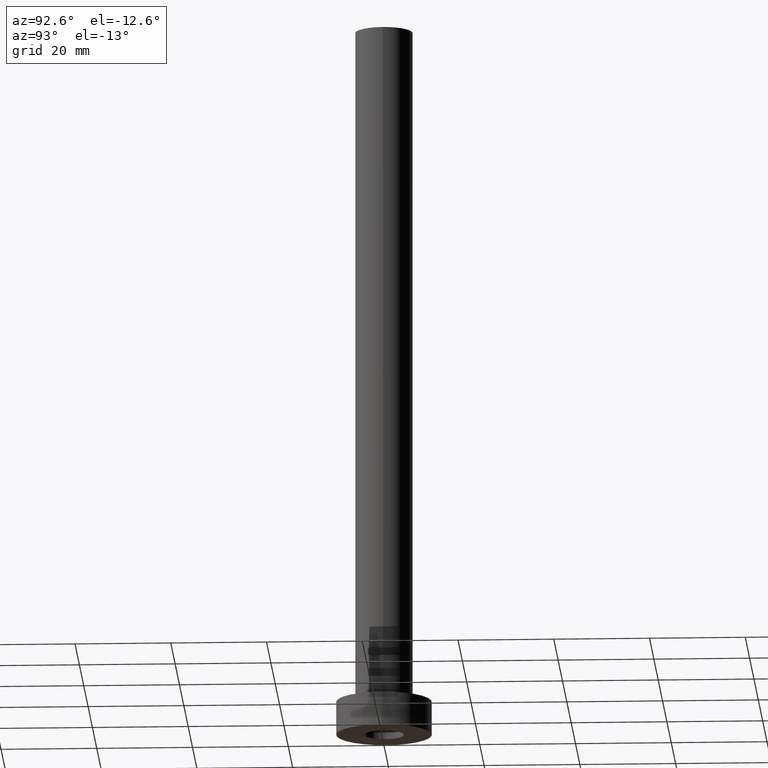
[diagram: clean part render]
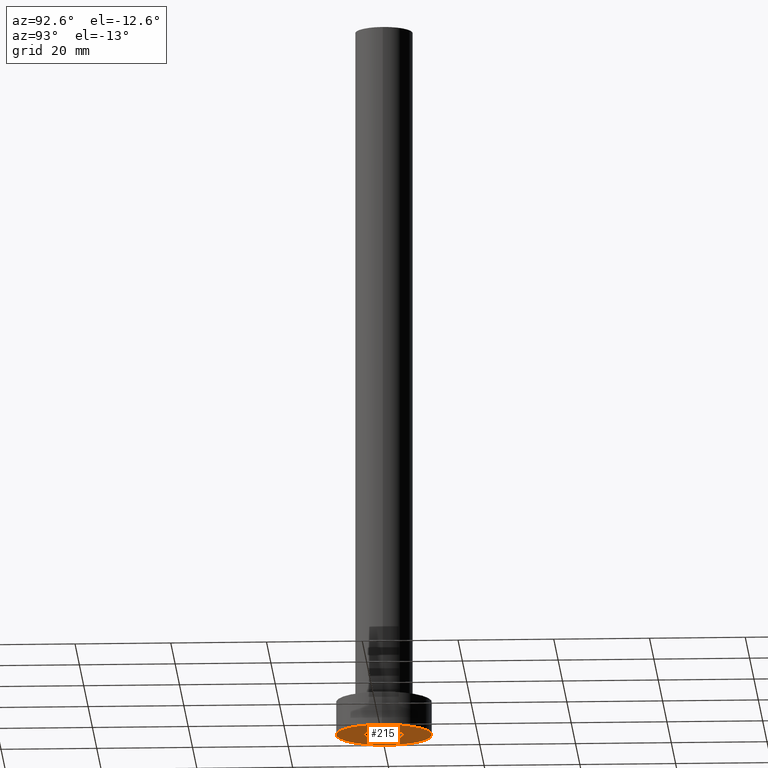
[diagram: same view with one face highlighted and labeled with its STEP entity id]
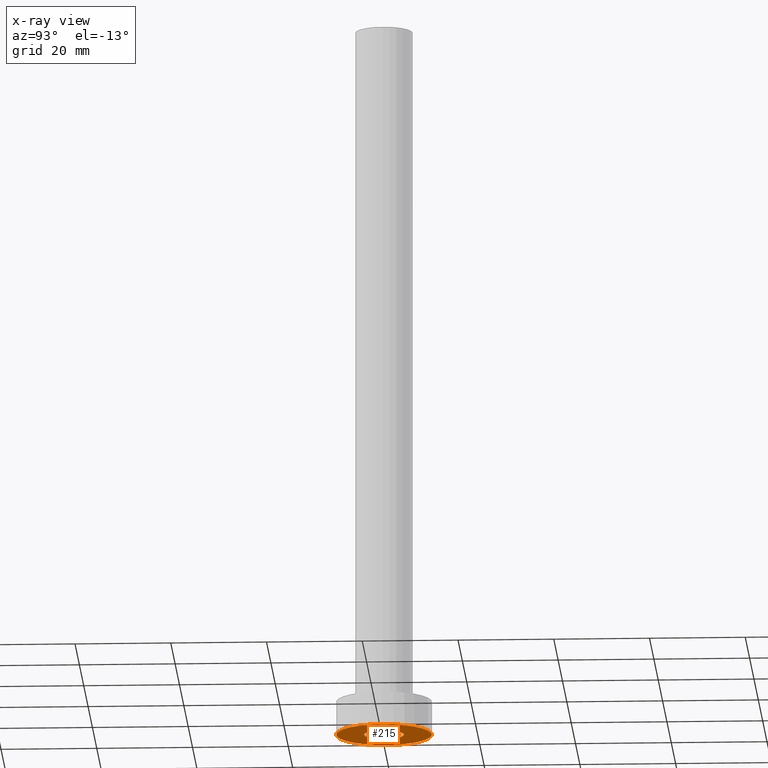
[diagram: x-ray of the same camera — body ghosted, the highlighted face saturated]
A machine part, auxiliary view. The second image highlights one B-rep face of the part: STEP entity #215.
The next image is the same camera in x-ray: the body ghosted, the highlighted face saturated — about 0% of this face is hidden behind the body in this view.
In plain terms, the highlighted planar face has unit normal (0, 0, 1).
Its self-contained STEP definition (entity closure, byte-faithful):
#5 = CARTESIAN_POINT ( 'NONE',  ( -4.150000000000000355, 0.000000000000000000, 0.000000000000000000 ) ) ;
#17 = CARTESIAN_POINT ( 'NONE',  ( 0.000000000000000000, 0.000000000000000000, 0.000000000000000000 ) ) ;
#43 = DIRECTION ( 'NONE',  ( 0.000000000000000000, 0.000000000000000000, 1.000000000000000000 ) ) ;
#118 = CARTESIAN_POINT ( 'NONE',  ( 0.000000000000000000, 0.000000000000000000, 0.000000000000000000 ) ) ;
#121 = DIRECTION ( 'NONE',  ( 1.000000000000000000, 0.000000000000000000, 0.000000000000000000 ) ) ;
#122 = DIRECTION ( 'NONE',  ( 1.000000000000000000, 0.000000000000000000, 0.000000000000000000 ) ) ;
#146 = FACE_BOUND ( 'NONE', #304, .T. ) ;
#152 = CARTESIAN_POINT ( 'NONE',  ( 10.00000000000000000, 1.224646799147353256E-15, 0.000000000000000000 ) ) ;
#155 = DIRECTION ( 'NONE',  ( 1.000000000000000000, 0.000000000000000000, -0.000000000000000000 ) ) ;
#159 = CARTESIAN_POINT ( 'NONE',  ( -10.00000000000000000, 0.000000000000000000, 0.000000000000000000 ) ) ;
#160 = EDGE_CURVE ( 'NONE', #316, #452, #385, .T. ) ;
#171 = AXIS2_PLACEMENT_3D ( 'NONE', #205, #449, #122 ) ;
#177 = ORIENTED_EDGE ( 'NONE', *, *, #207, .F. ) ;
#180 = AXIS2_PLACEMENT_3D ( 'NONE', #17, #374, #155 ) ;
#197 = CARTESIAN_POINT ( 'NONE',  ( 4.150000000000000355, 5.082284216461515156E-16, 0.000000000000000000 ) ) ;
#205 = CARTESIAN_POINT ( 'NONE',  ( 0.000000000000000000, 0.000000000000000000, 0.000000000000000000 ) ) ;
#207 = EDGE_CURVE ( 'NONE', #267, #381, #247, .T. ) ;
#215 = ADVANCED_FACE ( 'NONE', ( #146, #234 ), #410, .F. ) ;
#234 = FACE_OUTER_BOUND ( 'NONE', #329, .T. ) ;
#238 = AXIS2_PLACEMENT_3D ( 'NONE', #357, #43, #313 ) ;
#247 = CIRCLE ( 'NONE', #238, 10.00000000000000000 ) ;
#267 = VERTEX_POINT ( 'NONE', #159 ) ;
#271 = CIRCLE ( 'NONE', #423, 4.150000000000000355 ) ;
#282 = ORIENTED_EDGE ( 'NONE', *, *, #390, .F. ) ;
#284 = ORIENTED_EDGE ( 'NONE', *, *, #160, .F. ) ;
#296 = CARTESIAN_POINT ( 'NONE',  ( 0.000000000000000000, 0.000000000000000000, 0.000000000000000000 ) ) ;
#300 = AXIS2_PLACEMENT_3D ( 'NONE', #296, #447, #121 ) ;
#303 = DIRECTION ( 'NONE',  ( 1.000000000000000000, 0.000000000000000000, 0.000000000000000000 ) ) ;
#304 = EDGE_LOOP ( 'NONE', ( #282, #284 ) ) ;
#313 = DIRECTION ( 'NONE',  ( 1.000000000000000000, 0.000000000000000000, 0.000000000000000000 ) ) ;
#316 = VERTEX_POINT ( 'NONE', #197 ) ;
#329 = EDGE_LOOP ( 'NONE', ( #177, #395 ) ) ;
#357 = CARTESIAN_POINT ( 'NONE',  ( 0.000000000000000000, 0.000000000000000000, 0.000000000000000000 ) ) ;
#374 = DIRECTION ( 'NONE',  ( 0.000000000000000000, 0.000000000000000000, 1.000000000000000000 ) ) ;
#379 = DIRECTION ( 'NONE',  ( -0.000000000000000000, -0.000000000000000000, -1.000000000000000000 ) ) ;
#381 = VERTEX_POINT ( 'NONE', #152 ) ;
#385 = CIRCLE ( 'NONE', #171, 4.150000000000000355 ) ;
#390 = EDGE_CURVE ( 'NONE', #452, #316, #271, .T. ) ;
#392 = CIRCLE ( 'NONE', #300, 10.00000000000000000 ) ;
#395 = ORIENTED_EDGE ( 'NONE', *, *, #426, .F. ) ;
#410 = PLANE ( 'NONE',  #180 ) ;
#423 = AXIS2_PLACEMENT_3D ( 'NONE', #118, #379, #303 ) ;
#426 = EDGE_CURVE ( 'NONE', #381, #267, #392, .T. ) ;
#447 = DIRECTION ( 'NONE',  ( 0.000000000000000000, 0.000000000000000000, 1.000000000000000000 ) ) ;
#449 = DIRECTION ( 'NONE',  ( -0.000000000000000000, -0.000000000000000000, -1.000000000000000000 ) ) ;
#452 = VERTEX_POINT ( 'NONE', #5 ) ;